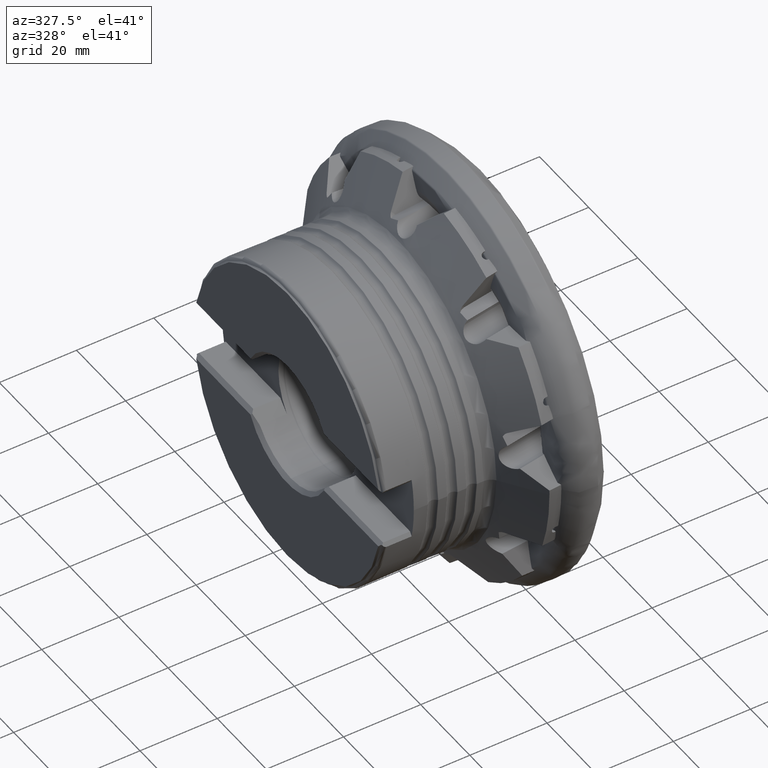
[diagram: clean part render]
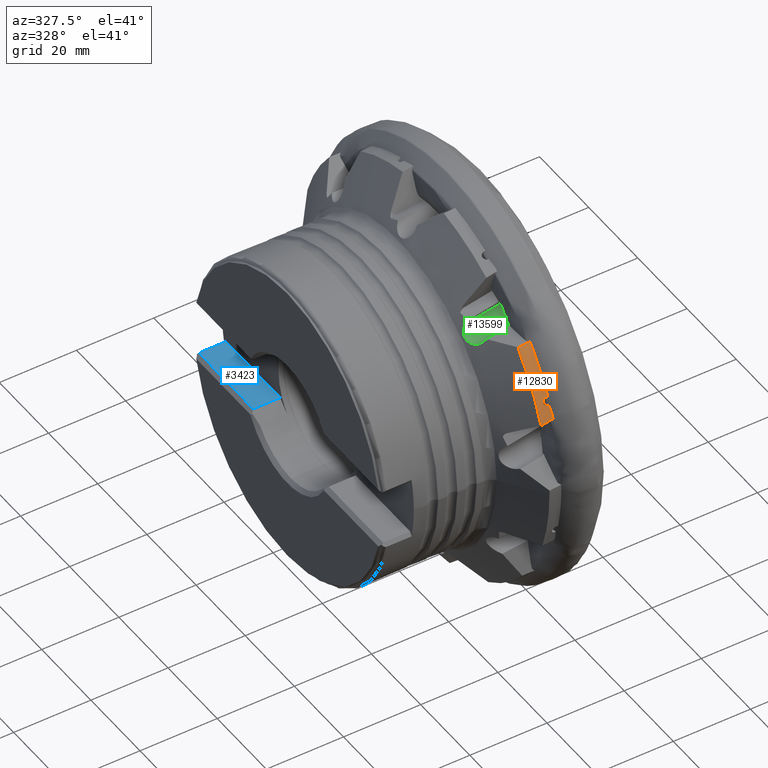
[diagram: same view with three faces highlighted in distinct colors, each labeled with its STEP entity id]
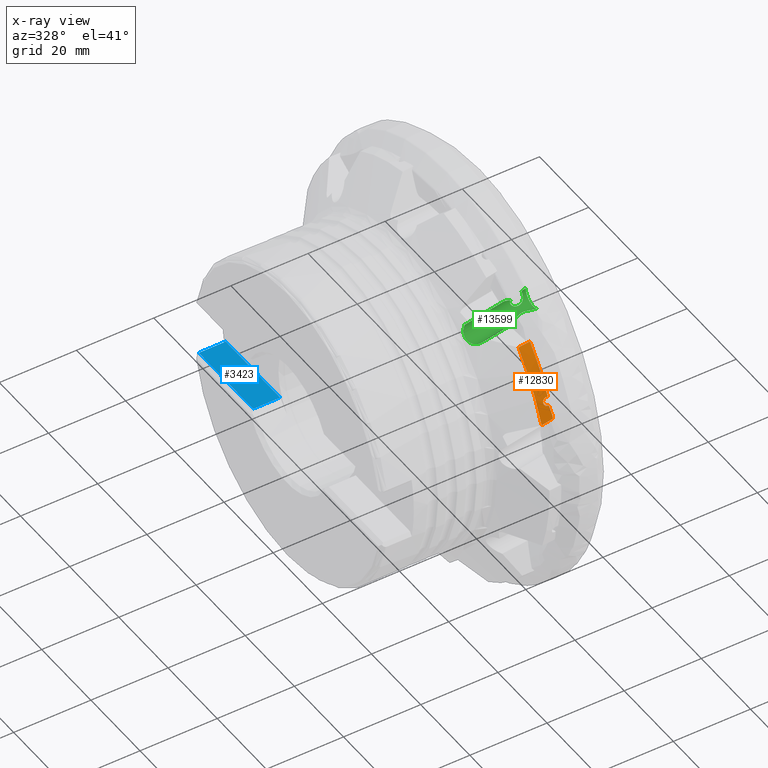
[diagram: x-ray of the same camera — body ghosted, the three highlighted faces saturated]
A machine part, auxiliary view with three faces highlighted in distinct colors.
The next image is the same camera in x-ray (body ghosted, the three faces saturated) — at least one of them is partly hidden behind the body in this view.
Their STEP definitions:

[orange] entity #12830 — the highlighted cylindrical surface (partial cylindrical patch) has radius 50.55 mm, axis along (1, 0, -0).
#33 = CARTESIAN_POINT ( 'NONE',  ( -11.70172971371500200, -45.36197102139636400, 22.30714347018183500 ) ) ;
#634 = AXIS2_PLACEMENT_3D ( 'NONE', #12837, #4757, #14197 ) ;
#914 = CARTESIAN_POINT ( 'NONE',  ( -10.45445062470918200, -45.00872695589536200, 23.01123633813834200 ) ) ;
#923 =( BOUNDED_CURVE ( )  B_SPLINE_CURVE ( 3, ( #2471, #3867, #14689, #6589 ),
 .UNSPECIFIED., .F., .F. ) 
 B_SPLINE_CURVE_WITH_KNOTS ( ( 4, 4 ),
 ( 4.661406497198564500, 4.661915962239643100 ),
 .UNSPECIFIED. ) 
 CURVE ( )  GEOMETRIC_REPRESENTATION_ITEM ( )  RATIONAL_B_SPLINE_CURVE ( ( 1.000000000000000000, 0.9999999783704477400, 0.9999999783704477400, 1.000000000000000000 ) ) 
 REPRESENTATION_ITEM ( '' )  );
#1224 = CARTESIAN_POINT ( 'NONE',  ( -12.32454089200210000, -47.29471575550018500, 17.84751277744532400 ) ) ;
#1435 = CARTESIAN_POINT ( 'NONE',  ( -11.52753741392010200, -45.20492492995811100, 22.62356729660692200 ) ) ;
#1472 =( BOUNDED_CURVE ( )  B_SPLINE_CURVE ( 3, ( #6704, #9409, #1224, #10772 ),
 .UNSPECIFIED., .F., .F. ) 
 B_SPLINE_CURVE_WITH_KNOTS ( ( 4, 4 ),
 ( 1.727768842058992700, 1.736440560038897200 ),
 .UNSPECIFIED. ) 
 CURVE ( )  GEOMETRIC_REPRESENTATION_ITEM ( )  RATIONAL_B_SPLINE_CURVE ( ( 1.000000000000000000, 0.9999937334520905300, 0.9999937334520905300, 1.000000000000000000 ) ) 
 REPRESENTATION_ITEM ( '' )  );
#2046 =( BOUNDED_CURVE ( )  B_SPLINE_CURVE ( 3, ( #8888, #17029, #2110, #11614 ),
 .UNSPECIFIED., .F., .F. ) 
 B_SPLINE_CURVE_WITH_KNOTS ( ( 4, 4 ),
 ( 1.434430900402012600, 1.479381824789411300 ),
 .UNSPECIFIED. ) 
 CURVE ( )  GEOMETRIC_REPRESENTATION_ITEM ( )  RATIONAL_B_SPLINE_CURVE ( ( 1.000000000000000000, 0.9998316249544094700, 0.9998316249544094700, 1.000000000000000000 ) ) 
 REPRESENTATION_ITEM ( '' )  );
#2095 = CARTESIAN_POINT ( 'NONE',  ( -10.27144097513955500, -37.79355982161962400, 33.57006607097547100 ) ) ;
#2097 = CARTESIAN_POINT ( 'NONE',  ( -10.27144097514276800, -46.80714491734561700, 19.08909858233881700 ) ) ;
#2110 = CARTESIAN_POINT ( 'NONE',  ( -10.48267867455368000, -46.21935760387749100, 20.48529396944496700 ) ) ;
#2129 = CARTESIAN_POINT ( 'NONE',  ( -10.27144097513957600, -3.212862441484482700E-015, 0.0000000000000000000 ) ) ;
#2177 = CIRCLE ( 'NONE', #634, 50.54999999999999700 ) ;
#2471 = CARTESIAN_POINT ( 'NONE',  ( -10.45445062470918200, -45.00872695589536200, 23.01123633813834200 ) ) ;
#2615 = CARTESIAN_POINT ( 'NONE',  ( -10.58869200520302600, -45.90208026985499100, 21.17313219388641700 ) ) ;
#2757 = CARTESIAN_POINT ( 'NONE',  ( -13.34999999999999400, -47.34590985264613000, 17.71065555605173000 ) ) ;
#2793 = CARTESIAN_POINT ( 'NONE',  ( -10.85834393788573800, -45.90617281007582300, 21.16425755682101000 ) ) ;
#2856 = CARTESIAN_POINT ( 'NONE',  ( -11.23176750381341200, -45.08809645033709000, 22.85538392610637400 ) ) ;
#3052 = CARTESIAN_POINT ( 'NONE',  ( -10.63502789603476200, -45.90481932731319900, 21.16719408165253200 ) ) ;
#3103 =( BOUNDED_CURVE ( )  B_SPLINE_CURVE ( 3, ( #3339, #3993, #4189, #3372 ),
 .UNSPECIFIED., .F., .F. ) 
 B_SPLINE_CURVE_WITH_KNOTS ( ( 4, 4 ),
 ( 5.350665621374147900, 5.355140929386264400 ),
 .UNSPECIFIED. ) 
 CURVE ( )  GEOMETRIC_REPRESENTATION_ITEM ( )  RATIONAL_B_SPLINE_CURVE ( ( 1.000000000000000000, 0.9999983309688795800, 0.9999983309688795800, 1.000000000000000000 ) ) 
 REPRESENTATION_ITEM ( '' )  );
#3150 = CARTESIAN_POINT ( 'NONE',  ( -10.27144097515235700, -44.99699769481209400, 23.03416372373108700 ) ) ;
#3339 = CARTESIAN_POINT ( 'NONE',  ( -13.34999999999999400, -37.94341723448499700, 33.40059263800250700 ) ) ;
#3372 = CARTESIAN_POINT ( 'NONE',  ( -10.27144097513955500, -37.79355982161962400, 33.57006607097547100 ) ) ;
#3474 = VERTEX_POINT ( 'NONE', #2095 ) ;
#3534 = DIRECTION ( 'NONE',  ( -1.029509481291874000E-016, 1.000000000000000000, 0.0000000000000000000 ) ) ;
#3602 = EDGE_CURVE ( 'NONE', #16753, #3474, #3103, .T. ) ;
#3612 = CARTESIAN_POINT ( 'NONE',  ( -10.44179568467560200, -45.04970040546888300, 22.93091784856194000 ) ) ;
#3682 = CARTESIAN_POINT ( 'NONE',  ( -10.27144097513941600, -47.19054980316848700, 18.12055488318971200 ) ) ;
#3867 = CARTESIAN_POINT ( 'NONE',  ( -10.39344819781255300, -45.00481914903100700, 23.01887979586350100 ) ) ;
#3993 = CARTESIAN_POINT ( 'NONE',  ( -12.32210301827877600, -37.89359121295697000, 33.45719551162401500 ) ) ;
#4189 = CARTESIAN_POINT ( 'NONE',  ( -11.29591496391866700, -37.84363865862948000, 33.51368675023398000 ) ) ;
#4260 = CARTESIAN_POINT ( 'NONE',  ( -10.85932048474164300, -45.03070132668468500, 22.96820493697580200 ) ) ;
#4432 = CARTESIAN_POINT ( 'NONE',  ( -10.58869200520302600, -45.90208026985499100, 21.17313219388641700 ) ) ;
#4546 = EDGE_CURVE ( 'NONE', #4865, #11271, #4978, .T. ) ;
#4673 = VERTEX_POINT ( 'NONE', #914 ) ;
#4757 = DIRECTION ( 'NONE',  ( 1.000000000000000000, 1.224646799147353700E-016, -0.0000000000000000000 ) ) ;
#4865 = VERTEX_POINT ( 'NONE', #9803 ) ;
#4870 = EDGE_CURVE ( 'NONE', #10595, #10306, #12110, .T. ) ;
#4952 = EDGE_CURVE ( 'NONE', #7421, #3474, #11988, .T. ) ;
#4978 = B_SPLINE_CURVE_WITH_KNOTS ( 'NONE', 3,
 ( #6236, #14318, #14259, #15681 ),
 .UNSPECIFIED., .F., .F.,
 ( 4, 4 ),
 ( 0.003650097140071839300, 0.003938878380362780200 ),
 .UNSPECIFIED. ) ;
#5558 = CARTESIAN_POINT ( 'NONE',  ( -11.23158269255365100, -45.85295710280480800, 21.27936446811499500 ) ) ;
#5563 = AXIS2_PLACEMENT_3D ( 'NONE', #2129, #11631, #3534 ) ;
#5705 = ORIENTED_EDGE ( 'NONE', *, *, #12446, .T. ) ;
#5806 = CARTESIAN_POINT ( 'NONE',  ( -10.72786510616307400, -45.90617281007582300, 21.16425755682101000 ) ) ;
#5886 = FACE_OUTER_BOUND ( 'NONE', #8286, .T. ) ;
#6236 = CARTESIAN_POINT ( 'NONE',  ( -10.72786510616307400, -45.03070132668467100, 22.96820493697579500 ) ) ;
#6431 = CARTESIAN_POINT ( 'NONE',  ( -10.45023211659236800, -45.02240864791912900, 22.98447569253272200 ) ) ;
#6589 = CARTESIAN_POINT ( 'NONE',  ( -10.27144097515235700, -44.99699769481209400, 23.03416372373108700 ) ) ;
#6622 = EDGE_CURVE ( 'NONE', #16753, #10191, #2177, .T. ) ;
#6704 = CARTESIAN_POINT ( 'NONE',  ( -10.27144097513941600, -47.19054980316848700, 18.12055488318971200 ) ) ;
#6751 = ORIENTED_EDGE ( 'NONE', *, *, #13461, .T. ) ;
#6900 = CARTESIAN_POINT ( 'NONE',  ( -11.62093743734648800, -45.70308754177974500, 21.60011753457795400 ) ) ;
#7103 = DIRECTION ( 'NONE',  ( 1.000000000000000000, 1.224646799147353700E-016, -0.0000000000000000000 ) ) ;
#7166 = CARTESIAN_POINT ( 'NONE',  ( -13.34999999999999400, -37.94341723448499700, 33.40059263800250700 ) ) ;
#7391 = CARTESIAN_POINT ( 'NONE',  ( -10.27144097513957600, -3.212862441484482700E-015, 0.0000000000000000000 ) ) ;
#7421 = VERTEX_POINT ( 'NONE', #3150 ) ;
#7448 = ORIENTED_EDGE ( 'NONE', *, *, #10636, .T. ) ;
#7779 = CARTESIAN_POINT ( 'NONE',  ( -10.44601380212943400, -45.03606646806474600, 22.95770285557560800 ) ) ;
#8040 = ORIENTED_EDGE ( 'NONE', *, *, #6622, .T. ) ;
#8249 = CARTESIAN_POINT ( 'NONE',  ( -11.72785766986581800, -45.41982379139982800, 22.18917038306001600 ) ) ;
#8286 = EDGE_LOOP ( 'NONE', ( #15860, #6751, #5705, #17687, #7448, #15918, #17123, #9962, #9694, #9027, #8040 ) ) ;
#8447 = DIRECTION ( 'NONE',  ( -1.224646799147353700E-016, 1.000000000000000000, 0.0000000000000000000 ) ) ;
#8686 = CARTESIAN_POINT ( 'NONE',  ( -10.72786510616307400, -45.90617281007582300, 21.16425755682101000 ) ) ;
#8732 = DIRECTION ( 'NONE',  ( -1.029509481291874000E-016, 1.000000000000000000, 0.0000000000000000000 ) ) ;
#8815 = CIRCLE ( 'NONE', #5563, 50.54999999999998300 ) ;
#8888 = CARTESIAN_POINT ( 'NONE',  ( -10.27144097514276800, -46.80714491734561700, 19.08909858233881700 ) ) ;
#8935 = AXIS2_PLACEMENT_3D ( 'NONE', #9818, #7103, #8447 ) ;
#9027 = ORIENTED_EDGE ( 'NONE', *, *, #3602, .F. ) ;
#9409 = CARTESIAN_POINT ( 'NONE',  ( -11.29834811969558200, -47.24292874781515600, 17.98414674271458900 ) ) ;
#9616 = CARTESIAN_POINT ( 'NONE',  ( -11.60207275472249600, -45.25494112317270600, 22.52348482547611400 ) ) ;
#9694 = ORIENTED_EDGE ( 'NONE', *, *, #4952, .T. ) ;
#9803 = CARTESIAN_POINT ( 'NONE',  ( -10.72786510616307400, -45.03070132668467100, 22.96820493697579500 ) ) ;
#9818 = CARTESIAN_POINT ( 'NONE',  ( 0.0000000000000000000, 0.0000000000000000000, 0.0000000000000000000 ) ) ;
#9910 = VERTEX_POINT ( 'NONE', #2097 ) ;
#9962 = ORIENTED_EDGE ( 'NONE', *, *, #12613, .T. ) ;
#10191 = VERTEX_POINT ( 'NONE', #2757 ) ;
#10306 = VERTEX_POINT ( 'NONE', #8686 ) ;
#10595 = VERTEX_POINT ( 'NONE', #2615 ) ;
#10636 = EDGE_CURVE ( 'NONE', #10306, #4865, #11416, .T. ) ;
#10772 = CARTESIAN_POINT ( 'NONE',  ( -13.34999999999999400, -47.34590985264613000, 17.71065555605173000 ) ) ;
#10985 = CARTESIAN_POINT ( 'NONE',  ( -11.34330916008720400, -45.12192895037610200, 22.78864987103145600 ) ) ;
#11165 = CARTESIAN_POINT ( 'NONE',  ( -10.68141933587851300, -45.90617281007581600, 21.16425755682101000 ) ) ;
#11271 = VERTEX_POINT ( 'NONE', #3612 ) ;
#11416 = B_SPLINE_CURVE_WITH_KNOTS ( 'NONE', 3,
 ( #16256, #2793, #13628, #5558, #15007, #6900, #16371, #8249, #33, #9616, #1435, #10985, #2856, #12329, #4260, #13691 ),
 .UNSPECIFIED., .F., .F.,
 ( 4, 2, 2, 2, 2, 2, 2, 4 ),
 ( 0.0005189335520181353700, 0.0009103290005248436000, 0.001301724449031551700, 0.002084515346044981200, 0.002475910794551695300, 0.002867306243058409800, 0.003258701691565124300, 0.003650097140071839300 ),
 .UNSPECIFIED. ) ;
#11614 = CARTESIAN_POINT ( 'NONE',  ( -10.58869200520302600, -45.90208026985499100, 21.17313219388641700 ) ) ;
#11631 = DIRECTION ( 'NONE',  ( -1.000000000000000000, -1.193693284822026100E-016, 0.0000000000000000000 ) ) ;
#11988 = CIRCLE ( 'NONE', #12737, 50.54999999999998300 ) ;
#12110 = B_SPLINE_CURVE_WITH_KNOTS ( 'NONE', 3,
 ( #4432, #3052, #11165, #5806 ),
 .UNSPECIFIED., .F., .F.,
 ( 4, 4 ),
 ( 0.0003796108522992591700, 0.0005189335520181353700 ),
 .UNSPECIFIED. ) ;
#12329 = CARTESIAN_POINT ( 'NONE',  ( -10.99027330952094900, -45.04265051558018500, 22.94481750757511700 ) ) ;
#12446 = EDGE_CURVE ( 'NONE', #9910, #10595, #2046, .T. ) ;
#12613 = EDGE_CURVE ( 'NONE', #4673, #7421, #923, .T. ) ;
#12666 = EDGE_CURVE ( 'NONE', #16479, #10191, #1472, .T. ) ;
#12737 = AXIS2_PLACEMENT_3D ( 'NONE', #7391, #16879, #8732 ) ;
#12830 = ADVANCED_FACE ( 'NONE', ( #5886 ), #15831, .T. ) ;
#12837 = CARTESIAN_POINT ( 'NONE',  ( -13.34999999999999800, -1.634903476861716800E-015, 0.0000000000000000000 ) ) ;
#13461 = EDGE_CURVE ( 'NONE', #16479, #9910, #8815, .T. ) ;
#13628 = CARTESIAN_POINT ( 'NONE',  ( -10.99002182054541900, -45.89519074241809400, 21.18812152965886900 ) ) ;
#13691 = CARTESIAN_POINT ( 'NONE',  ( -10.72786510616307400, -45.03070132668467100, 22.96820493697579500 ) ) ;
#14181 = EDGE_CURVE ( 'NONE', #4673, #11271, #14221, .T. ) ;
#14197 = DIRECTION ( 'NONE',  ( -1.372679308389164800E-016, 1.000000000000000000, 0.0000000000000000000 ) ) ;
#14221 =( BOUNDED_CURVE ( )  B_SPLINE_CURVE ( 3, ( #15900, #6431, #7779, #17278 ),
 .UNSPECIFIED., .F., .F. ) 
 B_SPLINE_CURVE_WITH_KNOTS ( ( 4, 4 ),
 ( 4.763371463570796200, 4.765155160458133000 ),
 .UNSPECIFIED. ) 
 CURVE ( )  GEOMETRIC_REPRESENTATION_ITEM ( )  RATIONAL_B_SPLINE_CURVE ( ( 1.000000000000000000, 0.9999997348688021100, 0.9999997348688021100, 1.000000000000000000 ) ) 
 REPRESENTATION_ITEM ( '' )  );
#14259 = CARTESIAN_POINT ( 'NONE',  ( -10.53428887351622300, -45.03715669133202900, 22.95556102104937300 ) ) ;
#14318 = CARTESIAN_POINT ( 'NONE',  ( -10.63087407723396700, -45.03070132668467100, 22.96820493697579500 ) ) ;
#14689 = CARTESIAN_POINT ( 'NONE',  ( -10.33244497997586100, -45.00090939525620800, 23.02652225789519500 ) ) ;
#15007 = CARTESIAN_POINT ( 'NONE',  ( -11.34241602947633300, -45.82170085137048700, 21.34673108879450600 ) ) ;
#15681 = CARTESIAN_POINT ( 'NONE',  ( -10.44179568467560200, -45.04970040546888300, 22.93091784856194000 ) ) ;
#15831 = CYLINDRICAL_SURFACE ( 'NONE', #8935, 50.54999999999999700 ) ;
#15860 = ORIENTED_EDGE ( 'NONE', *, *, #12666, .F. ) ;
#15900 = CARTESIAN_POINT ( 'NONE',  ( -10.45445062470918200, -45.00872695589536200, 23.01123633813834200 ) ) ;
#15918 = ORIENTED_EDGE ( 'NONE', *, *, #4546, .T. ) ;
#16256 = CARTESIAN_POINT ( 'NONE',  ( -10.72786510616307400, -45.90617281007582300, 21.16425755682101000 ) ) ;
#16371 = CARTESIAN_POINT ( 'NONE',  ( -11.72787997390534200, -45.59148905987279900, 21.83546032087723500 ) ) ;
#16479 = VERTEX_POINT ( 'NONE', #3682 ) ;
#16753 = VERTEX_POINT ( 'NONE', #7166 ) ;
#16879 = DIRECTION ( 'NONE',  ( -1.000000000000000000, -1.193693284822026100E-016, 0.0000000000000000000 ) ) ;
#17029 = CARTESIAN_POINT ( 'NONE',  ( -10.37691052248281100, -46.52109662503023200, 19.79049911281387300 ) ) ;
#17123 = ORIENTED_EDGE ( 'NONE', *, *, #14181, .F. ) ;
#17278 = CARTESIAN_POINT ( 'NONE',  ( -10.44179568467560200, -45.04970040546888300, 22.93091784856194000 ) ) ;
#17687 = ORIENTED_EDGE ( 'NONE', *, *, #4870, .T. ) ;

[blue] entity #3423 — the highlighted planar face has unit normal (0, 0, -1).
#316 = EDGE_CURVE ( 'NONE', #4594, #13633, #7567, .T. ) ;
#679 = VECTOR ( 'NONE', #11498, 1000.000000000000000 ) ;
#2203 = DIRECTION ( 'NONE',  ( -0.0000000000000000000, 1.000000000000000000, -0.0000000000000000000 ) ) ;
#2219 = DIRECTION ( 'NONE',  ( -1.000000000000000000, 0.0000000000000000000, -2.478176394252579700E-016 ) ) ;
#2241 = DIRECTION ( 'NONE',  ( 2.478176394252579700E-016, 0.0000000000000000000, -1.000000000000000000 ) ) ;
#2342 = CARTESIAN_POINT ( 'NONE',  ( -47.64999999999999900, 37.47303783587899800, -7.199999999999994800 ) ) ;
#2361 = CARTESIAN_POINT ( 'NONE',  ( -48.14999999999999900, -54.99999999999999300, -7.199999999999994800 ) ) ;
#2979 = PLANE ( 'NONE',  #11705 ) ;
#3056 = LINE ( 'NONE', #7738, #13853 ) ;
#3423 = ADVANCED_FACE ( 'NONE', ( #14772 ), #2979, .F. ) ;
#3470 = CARTESIAN_POINT ( 'NONE',  ( -48.14999999999999900, -54.99999999999999300, -7.199999999999994800 ) ) ;
#3742 = DIRECTION ( 'NONE',  ( -1.000000000000000000, -2.350364473687596000E-016, -2.478176394252579700E-016 ) ) ;
#4565 = CARTESIAN_POINT ( 'NONE',  ( -41.14999999999999100, 37.47303783587899100, -7.199999999999993100 ) ) ;
#4594 = VERTEX_POINT ( 'NONE', #6339 ) ;
#5169 = LINE ( 'NONE', #3470, #9166 ) ;
#5196 = CARTESIAN_POINT ( 'NONE',  ( -41.14999999999999100, 15.37239106759899500, -7.199999999999993100 ) ) ;
#5202 = VERTEX_POINT ( 'NONE', #14653 ) ;
#6111 = ORIENTED_EDGE ( 'NONE', *, *, #7899, .F. ) ;
#6339 = CARTESIAN_POINT ( 'NONE',  ( -48.14999999999999900, 15.37239106759899500, -7.199999999999994800 ) ) ;
#6564 = VERTEX_POINT ( 'NONE', #4565 ) ;
#7567 = LINE ( 'NONE', #16937, #679 ) ;
#7738 = CARTESIAN_POINT ( 'NONE',  ( -41.14999999999999100, -54.99999999999999300, -7.199999999999993100 ) ) ;
#7899 = EDGE_CURVE ( 'NONE', #4594, #5202, #5169, .T. ) ;
#8433 = VECTOR ( 'NONE', #3742, 1000.000000000000000 ) ;
#8984 = ORIENTED_EDGE ( 'NONE', *, *, #15230, .T. ) ;
#9166 = VECTOR ( 'NONE', #11574, 1000.000000000000000 ) ;
#11494 = EDGE_LOOP ( 'NONE', ( #6111, #13525, #8984, #15916 ) ) ;
#11498 = DIRECTION ( 'NONE',  ( 1.000000000000000000, 1.948386961570712600E-016, 2.478176394252579700E-016 ) ) ;
#11574 = DIRECTION ( 'NONE',  ( -0.0000000000000000000, 1.000000000000000000, -0.0000000000000000000 ) ) ;
#11705 = AXIS2_PLACEMENT_3D ( 'NONE', #2361, #2241, #2219 ) ;
#12455 = LINE ( 'NONE', #2342, #8433 ) ;
#13525 = ORIENTED_EDGE ( 'NONE', *, *, #316, .T. ) ;
#13633 = VERTEX_POINT ( 'NONE', #5196 ) ;
#13853 = VECTOR ( 'NONE', #2203, 1000.000000000000000 ) ;
#14653 = CARTESIAN_POINT ( 'NONE',  ( -48.14999999999999900, 37.47303783587900500, -7.199999999999994000 ) ) ;
#14772 = FACE_OUTER_BOUND ( 'NONE', #11494, .T. ) ;
#15230 = EDGE_CURVE ( 'NONE', #13633, #6564, #3056, .T. ) ;
#15916 = ORIENTED_EDGE ( 'NONE', *, *, #16102, .T. ) ;
#16102 = EDGE_CURVE ( 'NONE', #6564, #5202, #12455, .T. ) ;
#16937 = CARTESIAN_POINT ( 'NONE',  ( -48.15000000000001300, 15.37239106759899500, -7.199999999999994800 ) ) ;

[green] entity #13599 — the highlighted cylindrical surface (edge-blend (fillet) strip) has radius 3 mm, axis along (0.9903, 0.1308, 0.0476).
#77 = CARTESIAN_POINT ( 'NONE',  ( -19.69115405003699200, -25.54730465930290600, 32.69713089377934500 ) ) ;
#191 = EDGE_CURVE ( 'NONE', #12675, #15819, #4349, .T. ) ;
#268 = CARTESIAN_POINT ( 'NONE',  ( -18.64910390398434700, -29.83580668496743700, 30.94003480205031700 ) ) ;
#272 = CARTESIAN_POINT ( 'NONE',  ( -1.999999999999988000, -23.09905746324097800, 34.37552707122336700 ) ) ;
#447 = CARTESIAN_POINT ( 'NONE',  ( -4.185965903770874500, -26.47691883646578900, 31.24773963457418800 ) ) ;
#678 = CARTESIAN_POINT ( 'NONE',  ( -18.10264268677152800, -30.41646135499911800, 31.46422239927012400 ) ) ;
#683 = CARTESIAN_POINT ( 'NONE',  ( -4.356760844517989300, -24.58477754711147500, 31.87933255820953000 ) ) ;
#759 = CARTESIAN_POINT ( 'NONE',  ( -10.07013085297322300, -29.07325930824062300, 31.60024675693039200 ) ) ;
#798 = CARTESIAN_POINT ( 'NONE',  ( -3.182406831519083200, -23.27555064712656500, 33.96380897525786200 ) ) ;
#801 = ORIENTED_EDGE ( 'NONE', *, *, #15515, .F. ) ;
#828 = CARTESIAN_POINT ( 'NONE',  ( -19.37930757156376400, -25.39425893787257800, 33.37731217210973300 ) ) ;
#1005 = CARTESIAN_POINT ( 'NONE',  ( -3.087094322506982900, -23.56388716534580400, 32.97030849371194000 ) ) ;
#1059 = CARTESIAN_POINT ( 'NONE',  ( -6.998528089068464000, -23.79546760968470700, 33.65814988670173600 ) ) ;
#1426 = EDGE_CURVE ( 'NONE', #11829, #7026, #12431, .T. ) ;
#1535 = CARTESIAN_POINT ( 'NONE',  ( -3.130825487538925400, -23.25128568283581400, 34.17258288779164800 ) ) ;
#1659 = B_SPLINE_CURVE_WITH_KNOTS ( 'NONE', 3,
 ( #12685, #3222, #14052, #5969, #15432, #7318, #16809, #8667, #447, #10029, #1870, #11395, #3283, #12749, #4677, #14115, #6267, #15722, #7609, #17100, #8964, #759, #10339, #2188, #11687, #3582, #13052, #4967 ),
 .UNSPECIFIED., .F., .F.,
 ( 4, 2, 2, 2, 2, 2, 2, 2, 2, 2, 2, 2, 2, 4 ),
 ( 0.001473676935918272100, 0.002162866324982988700, 0.002852055714047705600, 0.003541245103112422400, 0.004230434492177137500, 0.004919623881241851800, 0.005608813270306566900, 0.006987192048435994500, 0.008365570826565424700, 0.009743949604694853200, 0.01043313899375957300, 0.01112232838282429000, 0.01181151777188900800, 0.01250070716095372600 ),
 .UNSPECIFIED. ) ;
#1685 = CARTESIAN_POINT ( 'NONE',  ( -1.999999999999988000, -23.09905746324097800, 31.78128646541152200 ) ) ;
#1774 = CARTESIAN_POINT ( 'NONE',  ( -6.419484609527708900, -23.75611015449757000, 33.50517674067492600 ) ) ;
#1870 = CARTESIAN_POINT ( 'NONE',  ( -4.878331264600540800, -26.40285193319976600, 31.21723568008522400 ) ) ;
#1909 = B_SPLINE_CURVE_WITH_KNOTS ( 'NONE', 3,
 ( #7886, #11804, #9252, #1059, #10615, #2482 ),
 .UNSPECIFIED., .F., .F.,
 ( 4, 2, 4 ),
 ( 0.001932415536170368300, 0.002830388857542642500, 0.003728362178914916600 ),
 .UNSPECIFIED. ) ;
#2066 = LINE ( 'NONE', #4693, #12467 ) ;
#2112 = CARTESIAN_POINT ( 'NONE',  ( -4.052856149249820700, -24.47784930972399300, 31.94697829518880600 ) ) ;
#2188 = CARTESIAN_POINT ( 'NONE',  ( -10.44377896402315500, -29.52995249262648900, 31.96360635738499000 ) ) ;
#2379 = ORIENTED_EDGE ( 'NONE', *, *, #5959, .F. ) ;
#2420 = CARTESIAN_POINT ( 'NONE',  ( -3.064337384588478500, -23.35402057807933900, 33.47746623715397600 ) ) ;
#2434 = VERTEX_POINT ( 'NONE', #6603 ) ;
#2482 = CARTESIAN_POINT ( 'NONE',  ( -6.419484609527708900, -23.75611015449757000, 33.50517674067492600 ) ) ;
#2747 = CARTESIAN_POINT ( 'NONE',  ( -66.08515240639944500, -37.43530627490199700, 30.24007058675380600 ) ) ;
#2844 = CARTESIAN_POINT ( 'NONE',  ( -17.67055953608925400, -30.76155873692549400, 31.98872374396201200 ) ) ;
#2866 = VERTEX_POINT ( 'NONE', #14698 ) ;
#2961 = CARTESIAN_POINT ( 'NONE',  ( -17.46013374362181000, -30.89170902032132900, 32.28030995565540500 ) ) ;
#3112 = CARTESIAN_POINT ( 'NONE',  ( -1.999999999999994900, -27.62863785294523200, 31.74082440079937900 ) ) ;
#3222 = CARTESIAN_POINT ( 'NONE',  ( -2.182483097486026800, -27.51672234116257700, 31.65561068009124000 ) ) ;
#3283 = CARTESIAN_POINT ( 'NONE',  ( -5.564540014027661700, -26.49697162760666900, 31.18393132615004100 ) ) ;
#3354 = CARTESIAN_POINT ( 'NONE',  ( -3.139220451189904900, -23.29000843516248100, 33.82569999749336600 ) ) ;
#3394 = AXIS2_PLACEMENT_3D ( 'NONE', #3767, #11864, #10564 ) ;
#3459 = CARTESIAN_POINT ( 'NONE',  ( -6.383696254333814900, -24.33530919475375500, 32.28977941484730300 ) ) ;
#3469 = CARTESIAN_POINT ( 'NONE',  ( -1.999999999999988000, -23.09905746324097800, 34.37552707122336700 ) ) ;
#3582 = CARTESIAN_POINT ( 'NONE',  ( -10.66761981529269200, -29.93330396867335400, 32.48137212779600000 ) ) ;
#3584 = CARTESIAN_POINT ( 'NONE',  ( -17.77837936457587600, -30.68493212953533700, 31.84872264120479500 ) ) ;
#3644 = CARTESIAN_POINT ( 'NONE',  ( -17.25863140650636400, -30.98702273203800700, 32.58705385846494800 ) ) ;
#3745 = CARTESIAN_POINT ( 'NONE',  ( -17.35792987820230200, -30.94514248341525300, 32.43118569770111700 ) ) ;
#3758 = CARTESIAN_POINT ( 'NONE',  ( -3.779347141736863100, -24.33567915438648300, 32.05087922925564900 ) ) ;
#3767 = CARTESIAN_POINT ( 'NONE',  ( -66.50267170927965300, -34.64366348451290600, 31.25614546715929600 ) ) ;
#3769 = CARTESIAN_POINT ( 'NONE',  ( -18.96657918529255600, -29.41747111511086000, 30.71327069039795900 ) ) ;
#3772 = EDGE_CURVE ( 'NONE', #12675, #14851, #11810, .T. ) ;
#3861 = CARTESIAN_POINT ( 'NONE',  ( -19.07035873044870700, -29.26553203229516200, 30.65355917714533300 ) ) ;
#3885 = CARTESIAN_POINT ( 'NONE',  ( -19.54762332759841600, -28.45021216267183600, 30.48709017635244900 ) ) ;
#3920 = CARTESIAN_POINT ( 'NONE',  ( -19.36582537748210000, -28.79444116870222100, 30.51924501060547400 ) ) ;
#4084 = DIRECTION ( 'NONE',  ( 0.9902680687415723600, 0.1307799359840510200, 0.04760000393743486800 ) ) ;
#4349 = B_SPLINE_CURVE_WITH_KNOTS ( 'NONE', 3,
 ( #14450, #828, #14566, #4889, #77, #14275, #16631, #11880, #5722, #16038, #13618, #12819, #15196, #6683, #7203, #6086, #12373, #3885, #3920, #3861, #3769, #14100, #268, #8765, #8848, #678, #8191, #3584, #2844, #2961, #3745, #3644 ),
 .UNSPECIFIED., .F., .F.,
 ( 4, 2, 2, 2, 2, 2, 2, 2, 2, 2, 2, 2, 2, 2, 2, 4 ),
 ( 0.002506389083005456600, 0.003073036901774792300, 0.003639684720544128500, 0.004206332539313463800, 0.004772980358082800000, 0.005339628176852136100, 0.005906275995621471400, 0.006472923814390806700, 0.007039571633160143800, 0.008172867270698804000, 0.008739515089468137500, 0.009306162908237471100, 0.009872810727006802900, 0.01043945854577613000, 0.01100610636454545400, 0.01157275418331478100 ),
 .UNSPECIFIED. ) ;
#4396 = CARTESIAN_POINT ( 'NONE',  ( -2.925027188214838900, -23.22122135024987000, 34.33106305264986000 ) ) ;
#4579 = CARTESIAN_POINT ( 'NONE',  ( -6.638705166372433000, -23.99730009367878100, 32.87302371923677000 ) ) ;
#4661 = ORIENTED_EDGE ( 'NONE', *, *, #11723, .F. ) ;
#4677 = CARTESIAN_POINT ( 'NONE',  ( -6.653439610137439800, -26.86787896852771200, 31.12795875791731600 ) ) ;
#4693 = CARTESIAN_POINT ( 'NONE',  ( -66.89545674795958500, -31.66948798306898300, 31.25614546715929600 ) ) ;
#4840 = CARTESIAN_POINT ( 'NONE',  ( -6.136766426616498300, -24.46550462254121800, 32.11451847433699700 ) ) ;
#4889 = CARTESIAN_POINT ( 'NONE',  ( -19.62017477523645000, -25.49569553048494100, 32.86568788882501500 ) ) ;
#4897 = EDGE_CURVE ( 'NONE', #12027, #14499, #12023, .T. ) ;
#4967 = CARTESIAN_POINT ( 'NONE',  ( -10.73587583451218400, -30.12559380882835900, 32.90058834544925800 ) ) ;
#5054 = VECTOR ( 'NONE', #11151, 1000.000000000000200 ) ;
#5118 = CARTESIAN_POINT ( 'NONE',  ( -3.236566691891602100, -23.27036347241518400, 34.09781003306466800 ) ) ;
#5136 = CARTESIAN_POINT ( 'NONE',  ( -3.539024464617416000, -24.16318735595132200, 32.19692374446733400 ) ) ;
#5174 = CARTESIAN_POINT ( 'NONE',  ( -3.207710865011933700, -23.27148407830331300, 34.03198216296212300 ) ) ;
#5282 = CARTESIAN_POINT ( 'NONE',  ( -3.121525616738348900, -23.30028121833231900, 33.75652914680130600 ) ) ;
#5395 = ORIENTED_EDGE ( 'NONE', *, *, #3772, .F. ) ;
#5446 = B_SPLINE_CURVE_WITH_KNOTS ( 'NONE', 3,
 ( #11080, #1535, #13795, #5716 ),
 .UNSPECIFIED., .F., .F.,
 ( 4, 4 ),
 ( 0.007106938286369008500, 0.007499239227491802700 ),
 .UNSPECIFIED. ) ;
#5453 = CARTESIAN_POINT ( 'NONE',  ( -3.107342244200832000, -23.31360922884369200, 33.68731817349191700 ) ) ;
#5716 = CARTESIAN_POINT ( 'NONE',  ( -2.925027188214838900, -23.22122135024987000, 34.33106305264986000 ) ) ;
#5722 = CARTESIAN_POINT ( 'NONE',  ( -19.99833914431923200, -26.05817287931263200, 31.72593392080992600 ) ) ;
#5944 = CARTESIAN_POINT ( 'NONE',  ( -6.595327987208856200, -24.13768656992495600, 32.60252208936612600 ) ) ;
#5951 = CARTESIAN_POINT ( 'NONE',  ( -1.999999999999994900, -27.62863785294523200, 31.74082440079937900 ) ) ;
#5959 = EDGE_CURVE ( 'NONE', #2434, #2866, #7995, .T. ) ;
#5969 = CARTESIAN_POINT ( 'NONE',  ( -2.740783546631997400, -27.15512764414654300, 31.45371993670325500 ) ) ;
#6086 = CARTESIAN_POINT ( 'NONE',  ( -19.83118392605005600, -27.74539088732838700, 30.58444337929660200 ) ) ;
#6149 = CARTESIAN_POINT ( 'NONE',  ( -6.452169087351094800, -24.28719783149032100, 32.35951910355772300 ) ) ;
#6204 = CARTESIAN_POINT ( 'NONE',  ( -5.646748446774343400, -24.62251361535214400, 31.92498115813132400 ) ) ;
#6267 = CARTESIAN_POINT ( 'NONE',  ( -7.881367357503627600, -27.49015108735884600, 31.11793702331021900 ) ) ;
#6294 = FACE_OUTER_BOUND ( 'NONE', #8065, .T. ) ;
#6486 = CARTESIAN_POINT ( 'NONE',  ( -3.345749656867906800, -23.97716226814337400, 32.38319578453868500 ) ) ;
#6603 = CARTESIAN_POINT ( 'NONE',  ( -6.419484609527708900, -23.75611015449757000, 33.50517674067492600 ) ) ;
#6619 = B_SPLINE_CURVE_WITH_KNOTS ( 'NONE', 3,
 ( #8830, #6149, #3459, #12916, #4840, #14282, #6204, #15647, #7546, #17031, #8891, #683, #10264, #2112, #11616, #3758, #13209, #5136, #14582, #6486, #15949, #7832, #17334, #9189, #1005, #10554, #2420, #11911 ),
 .UNSPECIFIED., .F., .F.,
 ( 4, 2, 2, 2, 2, 2, 2, 2, 2, 2, 2, 2, 2, 4 ),
 ( 1.734723475976807100E-018, 0.0003265890378999682800, 0.0006531780757999348200, 0.001306356151599878800, 0.001959534227399822300, 0.002286123265299794400, 0.002612712303199766200, 0.002939301341099737900, 0.003265890378999709700, 0.003592479416899681400, 0.003919068454799653200, 0.004245657492699624900, 0.004572246530599596700, 0.005225424606399558400 ),
 .UNSPECIFIED. ) ;
#6683 = CARTESIAN_POINT ( 'NONE',  ( -19.97776389168904000, -27.22551868984508900, 30.76926899254004900 ) ) ;
#6794 = EDGE_CURVE ( 'NONE', #15819, #14185, #14482, .T. ) ;
#7026 = VERTEX_POINT ( 'NONE', #7505 ) ;
#7203 = CARTESIAN_POINT ( 'NONE',  ( -19.93651620789158200, -27.39652147850087300, 30.69600037974365100 ) ) ;
#7292 = CARTESIAN_POINT ( 'NONE',  ( -6.507056054207707200, -24.23562095375783400, 32.44124013662094800 ) ) ;
#7318 = CARTESIAN_POINT ( 'NONE',  ( -3.326447789085629700, -26.81168614308621300, 31.32618590876972000 ) ) ;
#7383 = ORIENTED_EDGE ( 'NONE', *, *, #8393, .F. ) ;
#7505 = CARTESIAN_POINT ( 'NONE',  ( -3.236566691891602100, -23.27036347241518400, 34.09781003306466800 ) ) ;
#7546 = CARTESIAN_POINT ( 'NONE',  ( -4.999224354132676000, -24.68280331356011800, 31.83832582749224800 ) ) ;
#7609 = CARTESIAN_POINT ( 'NONE',  ( -9.053115150710706200, -28.22118927775796500, 31.22658858711807300 ) ) ;
#7832 = CARTESIAN_POINT ( 'NONE',  ( -3.200240690946022100, -23.78910778029129600, 32.61175297326884200 ) ) ;
#7886 = CARTESIAN_POINT ( 'NONE',  ( -8.115537263086420000, -23.90670702503173600, 34.08156667102100100 ) ) ;
#7995 = B_SPLINE_CURVE_WITH_KNOTS ( 'NONE', 3,
 ( #1774, #9943, #12657, #4579, #14028, #5944, #15405, #7292 ),
 .UNSPECIFIED., .F., .F.,
 ( 4, 2, 2, 4 ),
 ( 0.009632473438936998600, 0.01024319530697737400, 0.01054855624099757100, 0.01085391717501776900 ),
 .UNSPECIFIED. ) ;
#8065 = EDGE_LOOP ( 'NONE', ( #5395, #10930, #12075, #801, #10482, #4661, #9837, #9995, #7383, #2379, #9347 ) ) ;
#8191 = CARTESIAN_POINT ( 'NONE',  ( -17.99405932108756900, -30.51259394117405300, 31.58698586479182800 ) ) ;
#8393 = EDGE_CURVE ( 'NONE', #2866, #11829, #6619, .T. ) ;
#8667 = CARTESIAN_POINT ( 'NONE',  ( -3.964517001141481000, -26.53984590522748400, 31.25970300188121700 ) ) ;
#8765 = CARTESIAN_POINT ( 'NONE',  ( -18.43208550124626300, -30.08619515402094500, 31.12910686751463300 ) ) ;
#8830 = CARTESIAN_POINT ( 'NONE',  ( -6.507056054207707200, -24.23562095375783400, 32.44124013662094800 ) ) ;
#8848 = CARTESIAN_POINT ( 'NONE',  ( -18.32138661528825500, -30.20362414126715900, 31.23546675301118100 ) ) ;
#8891 = CARTESIAN_POINT ( 'NONE',  ( -4.567604173999682400, -24.63316538720717500, 31.85343585069867700 ) ) ;
#8964 = CARTESIAN_POINT ( 'NONE',  ( -9.759628757560069100, -28.77642838249076000, 31.43608724277868700 ) ) ;
#9189 = CARTESIAN_POINT ( 'NONE',  ( -3.106970068114687700, -23.61675431657014800, 32.87453789638288300 ) ) ;
#9252 = CARTESIAN_POINT ( 'NONE',  ( -7.563443067579899400, -23.84268222994268900, 33.85244293665608200 ) ) ;
#9347 = ORIENTED_EDGE ( 'NONE', *, *, #14205, .F. ) ;
#9443 = CYLINDRICAL_SURFACE ( 'NONE', #3394, 3.000000000000002700 ) ;
#9464 = CARTESIAN_POINT ( 'NONE',  ( -19.29094729841234500, -25.38258962202665700, 33.54438933643571400 ) ) ;
#9837 = ORIENTED_EDGE ( 'NONE', *, *, #14386, .F. ) ;
#9943 = CARTESIAN_POINT ( 'NONE',  ( -6.525304710740297900, -23.80696549671990400, 33.33669993639942000 ) ) ;
#9995 = ORIENTED_EDGE ( 'NONE', *, *, #1426, .F. ) ;
#10029 = CARTESIAN_POINT ( 'NONE',  ( -4.642849594155406700, -26.40774132540561700, 31.22665579474561800 ) ) ;
#10264 = CARTESIAN_POINT ( 'NONE',  ( -4.251777201727205300, -24.55317996337660700, 31.89803829554546500 ) ) ;
#10339 = CARTESIAN_POINT ( 'NONE',  ( -10.21187966208955400, -29.22919389308485800, 31.70455097550250300 ) ) ;
#10482 = ORIENTED_EDGE ( 'NONE', *, *, #4897, .F. ) ;
#10554 = CARTESIAN_POINT ( 'NONE',  ( -3.053406005172227800, -23.42446787910140300, 33.26437668554064700 ) ) ;
#10564 = DIRECTION ( 'NONE',  ( -0.1309283462266468400, 0.9913918338146402400, 0.0000000000000000000 ) ) ;
#10615 = CARTESIAN_POINT ( 'NONE',  ( -6.711836649286863300, -23.77627997646258300, 33.57281742208638800 ) ) ;
#10883 = VECTOR ( 'NONE', #4084, 1000.000000000000200 ) ;
#10930 = ORIENTED_EDGE ( 'NONE', *, *, #191, .T. ) ;
#11080 = CARTESIAN_POINT ( 'NONE',  ( -3.236566691891602100, -23.27036347241518400, 34.09781003306466800 ) ) ;
#11112 = CARTESIAN_POINT ( 'NONE',  ( -66.89545674795958500, -31.66948798306898300, 31.25614546715929600 ) ) ;
#11151 = DIRECTION ( 'NONE',  ( 0.9902680687415723600, 0.1307799359840510200, 0.04760000393743486800 ) ) ;
#11395 = CARTESIAN_POINT ( 'NONE',  ( -5.336703789952655300, -26.44787041435387200, 31.19586044104557100 ) ) ;
#11616 = CARTESIAN_POINT ( 'NONE',  ( -3.958334835981766300, -24.43413820880855500, 31.97715523570238000 ) ) ;
#11687 = CARTESIAN_POINT ( 'NONE',  ( -10.53631228067762900, -29.67834621959494300, 32.12267495356327600 ) ) ;
#11723 = EDGE_CURVE ( 'NONE', #12826, #12027, #2066, .T. ) ;
#11804 = CARTESIAN_POINT ( 'NONE',  ( -7.841631556181944500, -23.87053361709736200, 33.96155973202827700 ) ) ;
#11810 = LINE ( 'NONE', #11112, #5054 ) ;
#11829 = VERTEX_POINT ( 'NONE', #12506 ) ;
#11864 = DIRECTION ( 'NONE',  ( 0.9902680687415725800, 0.1307799359840510800, 0.04760000393743487500 ) ) ;
#11880 = CARTESIAN_POINT ( 'NONE',  ( -19.96371122052386900, -25.94990511388270700, 31.87827374248860900 ) ) ;
#11911 = CARTESIAN_POINT ( 'NONE',  ( -3.107342244200832000, -23.31360922884369200, 33.68731817349191700 ) ) ;
#12023 =( BOUNDED_CURVE ( )  B_SPLINE_CURVE ( 3, ( #272, #1685, #16634, #3112 ),
 .UNSPECIFIED., .F., .F. ) 
 B_SPLINE_CURVE_WITH_KNOTS ( ( 4, 4 ),
 ( 0.3459345134304900900, 2.436711095604965600 ),
 .UNSPECIFIED. ) 
 CURVE ( )  GEOMETRIC_REPRESENTATION_ITEM ( )  RATIONAL_B_SPLINE_CURVE ( ( 1.000000000000000000, 0.6677106973377411300, 0.6677106973377411300, 1.000000000000000000 ) ) 
 REPRESENTATION_ITEM ( '' )  );
#12027 = VERTEX_POINT ( 'NONE', #3469 ) ;
#12075 = ORIENTED_EDGE ( 'NONE', *, *, #6794, .T. ) ;
#12240 = CARTESIAN_POINT ( 'NONE',  ( -8.115537263086420000, -23.90670702503173600, 34.08156667102100100 ) ) ;
#12373 = CARTESIAN_POINT ( 'NONE',  ( -19.76630310949278500, -27.92474019264609500, 30.54631324623048600 ) ) ;
#12431 = B_SPLINE_CURVE_WITH_KNOTS ( 'NONE', 3,
 ( #5453, #5282, #3354, #798, #5174, #5118 ),
 .UNSPECIFIED., .F., .F.,
 ( 4, 2, 4 ),
 ( 0.005225424606399558400, 0.005440848353062795000, 0.005656272099726031600 ),
 .UNSPECIFIED. ) ;
#12467 = VECTOR ( 'NONE', #16886, 1000.000000000000200 ) ;
#12506 = CARTESIAN_POINT ( 'NONE',  ( -3.107342244200832000, -23.31360922884369200, 33.68731817349191700 ) ) ;
#12657 = CARTESIAN_POINT ( 'NONE',  ( -6.604747915599978600, -23.87282228521677800, 33.15267582311652500 ) ) ;
#12675 = VERTEX_POINT ( 'NONE', #9464 ) ;
#12685 = CARTESIAN_POINT ( 'NONE',  ( -1.999999999999994900, -27.62863785294523200, 31.74082440079937900 ) ) ;
#12749 = CARTESIAN_POINT ( 'NONE',  ( -6.232235416441046300, -26.68787268099468000, 31.14901724640079900 ) ) ;
#12819 = CARTESIAN_POINT ( 'NONE',  ( -20.05049337076490100, -26.73466032555956300, 31.05981326268903700 ) ) ;
#12826 = VERTEX_POINT ( 'NONE', #4396 ) ;
#12916 = CARTESIAN_POINT ( 'NONE',  ( -6.226239159765008900, -24.42450792875224900, 32.16714679351122200 ) ) ;
#13052 = CARTESIAN_POINT ( 'NONE',  ( -10.70909493548184300, -30.04291567466954800, 32.68443668272336600 ) ) ;
#13209 = CARTESIAN_POINT ( 'NONE',  ( -3.693977602536843400, -24.28019807030051100, 32.09506262996593800 ) ) ;
#13599 = ADVANCED_FACE ( 'NONE', ( #6294 ), #9443, .F. ) ;
#13618 = CARTESIAN_POINT ( 'NONE',  ( -20.05517441479187800, -26.44164358245186000, 31.30088915100266100 ) ) ;
#13795 = CARTESIAN_POINT ( 'NONE',  ( -3.027231541654597200, -23.23471898712422900, 34.25063804751714300 ) ) ;
#13855 = CARTESIAN_POINT ( 'NONE',  ( -17.25863140650636400, -30.98702273203800700, 32.58705385846494800 ) ) ;
#14028 = CARTESIAN_POINT ( 'NONE',  ( -6.635204835785463800, -24.04335382254533100, 32.77883891842627400 ) ) ;
#14052 = CARTESIAN_POINT ( 'NONE',  ( -2.366515300056574400, -27.39608579486789700, 31.57970822105548300 ) ) ;
#14100 = CARTESIAN_POINT ( 'NONE',  ( -18.75607084585289600, -29.70232134778955300, 30.85654704925719800 ) ) ;
#14115 = CARTESIAN_POINT ( 'NONE',  ( -7.478151331053014800, -27.26773725698608100, 31.11272587520834100 ) ) ;
#14185 = VERTEX_POINT ( 'NONE', #14565 ) ;
#14205 = EDGE_CURVE ( 'NONE', #14851, #2434, #1909, .T. ) ;
#14275 = CARTESIAN_POINT ( 'NONE',  ( -19.81747115967114700, -25.67887819657612900, 32.36392968983597700 ) ) ;
#14282 = CARTESIAN_POINT ( 'NONE',  ( -5.856538437454609000, -24.57139358318107400, 31.98277687986530900 ) ) ;
#14386 = EDGE_CURVE ( 'NONE', #7026, #12826, #5446, .T. ) ;
#14450 = CARTESIAN_POINT ( 'NONE',  ( -19.29094729841234500, -25.38258962202665700, 33.54438933643571400 ) ) ;
#14482 = LINE ( 'NONE', #2747, #10883 ) ;
#14499 = VERTEX_POINT ( 'NONE', #5951 ) ;
#14565 = CARTESIAN_POINT ( 'NONE',  ( -10.73587583451218400, -30.12559380882835900, 32.90058834544925800 ) ) ;
#14566 = CARTESIAN_POINT ( 'NONE',  ( -19.46394044158943300, -25.41888799289389000, 33.20656256995175000 ) ) ;
#14582 = CARTESIAN_POINT ( 'NONE',  ( -3.469563357703183900, -24.10203663029062000, 32.25420396667719600 ) ) ;
#14698 = CARTESIAN_POINT ( 'NONE',  ( -6.507056054207707200, -24.23562095375783400, 32.44124013662094800 ) ) ;
#14851 = VERTEX_POINT ( 'NONE', #12240 ) ;
#15196 = CARTESIAN_POINT ( 'NONE',  ( -20.03534532165804500, -26.89113716219848600, 30.95307938527983500 ) ) ;
#15405 = CARTESIAN_POINT ( 'NONE',  ( -6.558375399071955800, -24.18739654408532800, 32.51764934847244600 ) ) ;
#15432 = CARTESIAN_POINT ( 'NONE',  ( -2.931004251908126500, -27.03493601523226900, 31.40352493979369100 ) ) ;
#15515 = EDGE_CURVE ( 'NONE', #14499, #14185, #1659, .T. ) ;
#15647 = CARTESIAN_POINT ( 'NONE',  ( -5.221313961610504400, -24.67787562688792500, 31.85318150669084900 ) ) ;
#15722 = CARTESIAN_POINT ( 'NONE',  ( -8.669805000644666700, -27.96795151809728000, 31.17599158193691600 ) ) ;
#15819 = VERTEX_POINT ( 'NONE', #13855 ) ;
#15949 = CARTESIAN_POINT ( 'NONE',  ( -3.291000848909169100, -23.91276884892458900, 32.45582329503125200 ) ) ;
#16038 = CARTESIAN_POINT ( 'NONE',  ( -20.04426435462994100, -26.30362691318474000, 31.43725997683354100 ) ) ;
#16631 = CARTESIAN_POINT ( 'NONE',  ( -19.87326916896894600, -25.75983677147693700, 32.19763869164042800 ) ) ;
#16634 = CARTESIAN_POINT ( 'NONE',  ( -1.999999999999988000, -25.36030643816598100, 30.46599493724472700 ) ) ;
#16809 = CARTESIAN_POINT ( 'NONE',  ( -3.532877769166989300, -26.70805825472331600, 31.29891359636401300 ) ) ;
#16886 = DIRECTION ( 'NONE',  ( 0.9902680687415723600, 0.1307799359840510200, 0.04760000393743486800 ) ) ;
#17031 = CARTESIAN_POINT ( 'NONE',  ( -4.674488600097303600, -24.65043646494918400, 31.84593203749639700 ) ) ;
#17100 = CARTESIAN_POINT ( 'NONE',  ( -9.589973049956103800, -28.63417588205266600, 31.37465572558770100 ) ) ;
#17334 = CARTESIAN_POINT ( 'NONE',  ( -3.163674308255876700, -23.72945731555702100, 32.69528531564658600 ) ) ;